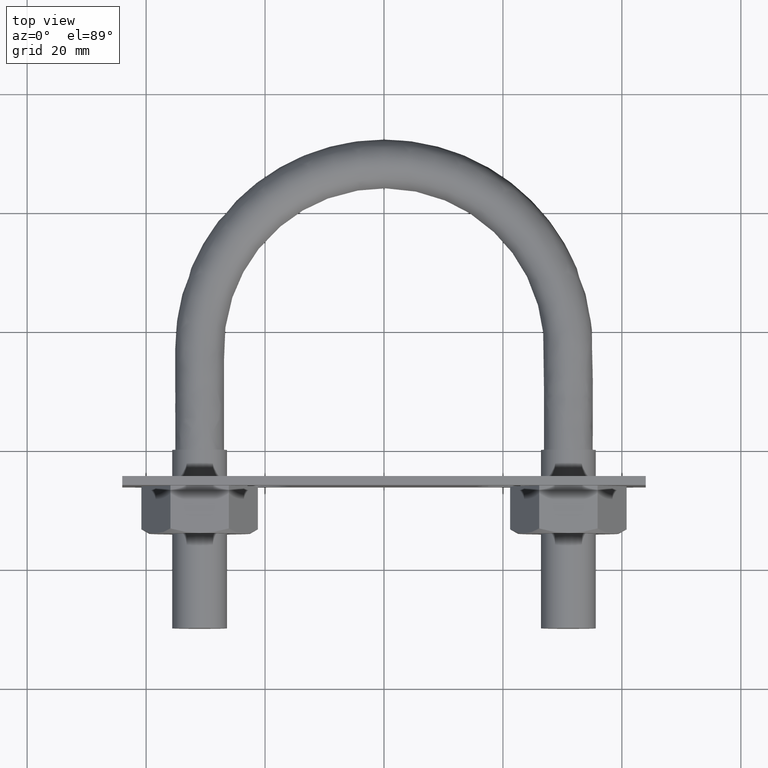
[diagram: clean part render]
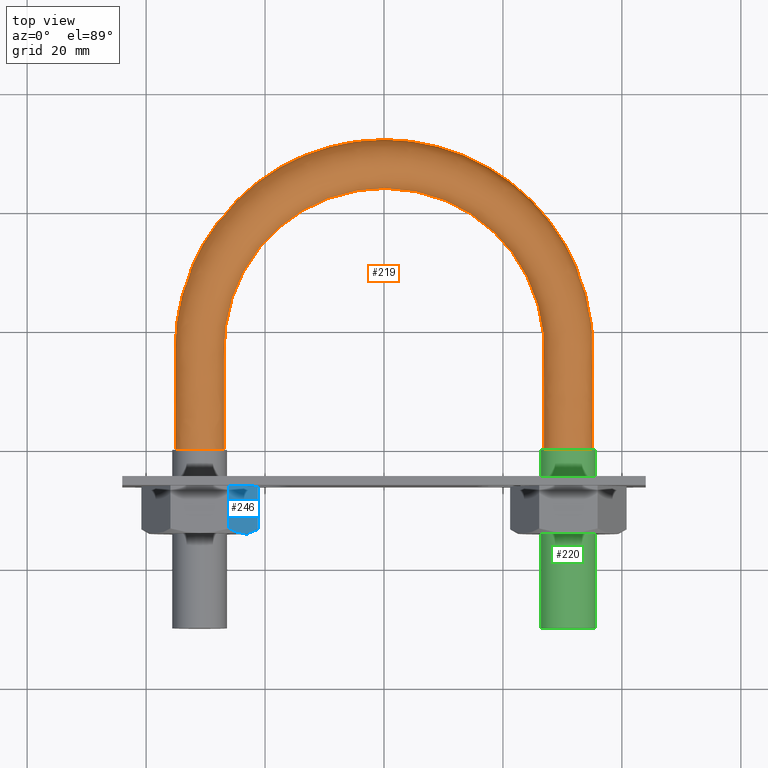
[diagram: same view with three faces highlighted in distinct colors, each labeled with its STEP entity id]
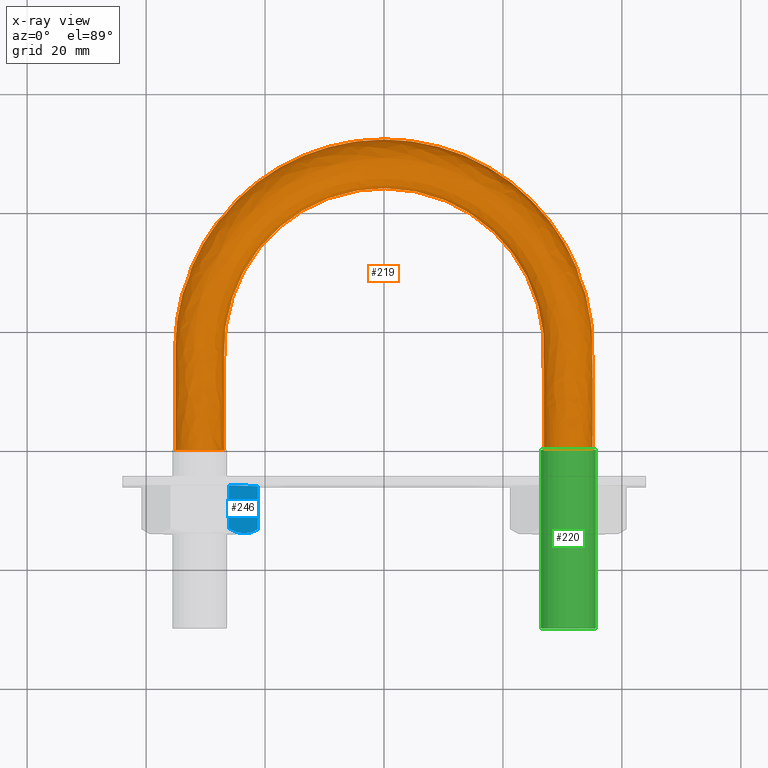
[diagram: x-ray of the same camera — body ghosted, the three highlighted faces saturated]
A machine part, top view with three faces highlighted in distinct colors.
The next image is the same camera in x-ray (body ghosted, the three faces saturated) — at least one of them is partly hidden behind the body in this view.
Their STEP definitions:

[orange] entity #219 — the highlighted face is a freeform B-spline surface patch.
#219 = ADVANCED_FACE( '', ( #291, #292 ), #293, .F. );
#291 = FACE_OUTER_BOUND( '', #452, .T. );
#292 = FACE_OUTER_BOUND( '', #453, .T. );
#293 = B_SPLINE_SURFACE_WITH_KNOTS( '', 3, 3, ( ( #454, #455, #456, #457, #458, #459, #460, #461, #462, #463, #464, #465, #466, #467, #468 ), ( #469, #470, #471, #472, #473, #474, #475, #476, #477, #478, #479, #480, #481, #482, #483 ), ( #484, #485, #486, #487, #488, #489, #490, #491, #492, #493, #494, #495, #496, #497, #498 ), ( #499, #500, #501, #502, #503, #504, #505, #506, #507, #508, #509, #510, #511, #512, #513 ), ( #514, #515, #516, #517, #518, #519, #520, #521, #522, #523, #524, #525, #526, #527, #528 ), ( #529, #530, #531, #532, #533, #534, #535, #536, #537, #538, #539, #540, #541, #542, #543 ), ( #544, #545, #546, #547, #548, #549, #550, #551, #552, #553, #554, #555, #556, #557, #558 ), ( #559, #560, #561, #562, #563, #564, #565, #566, #567, #568, #569, #570, #571, #572, #573 ), ( #574, #575, #576, #577, #578, #579, #580, #581, #582, #583, #584, #585, #586, #587, #588 ), ( #589, #590, #591, #592, #593, #594, #595, #596, #597, #598, #599, #600, #601, #602, #603 ) ), .UNSPECIFIED., .T., .F., .F., ( 2, 1, 1, 1, 1, 1, 1, 1, 1, 1, 1, 2 ), ( 4, 3, 1, 1, 1, 1, 1, 3, 4 ), ( -0.285714285714286, -0.142857142857143, 0.000000000000000, 0.142857142857143, 0.285714285714286, 0.428571428571429, 0.571428571428571, 0.714285714285714, 0.857142857142857, 1.00000000000000, 1.14285714285714, 1.28571428571429 ), ( 0.000000000000000, 1.00000000000000, 2.00000000000000, 3.00000000000000, 4.00000000000000, 5.00000000000000, 6.00000000000000, 7.00000000000000, 8.00000000000000 ), .UNSPECIFIED. );
#452 = EDGE_LOOP( '', ( #762 ) );
#453 = EDGE_LOOP( '', ( #763 ) );
#454 = CARTESIAN_POINT( '', ( -28.0768231851220, -2.24442655438486E-016, -3.66554778583225 ) );
#455 = CARTESIAN_POINT( '', ( -28.0768231851220, 5.70000000000000, -3.66554778583225 ) );
#456 = CARTESIAN_POINT( '', ( -28.0768231851220, 11.4000000000000, -3.66554778583225 ) );
#457 = CARTESIAN_POINT( '', ( -28.0768231851220, 17.1000000000000, -3.66554778583225 ) );
#458 = CARTESIAN_POINT( '', ( -28.0768231851220, 21.9860112912107, -3.66554778583225 ) );
#459 = CARTESIAN_POINT( '', ( -25.4518771226932, 31.8003436557627, -3.66554778583225 ) );
#460 = CARTESIAN_POINT( '', ( -14.6946481081682, 42.5502498233805, -3.66554778583225 ) );
#461 = CARTESIAN_POINT( '', ( -6.07153216591882E-015, 46.4901098659927, -3.66554778583225 ) );
#462 = CARTESIAN_POINT( '', ( 14.6946481081682, 42.5502498233805, -3.66554778583225 ) );
#463 = CARTESIAN_POINT( '', ( 25.4518771226932, 31.8003436557627, -3.66554778583225 ) );
#464 = CARTESIAN_POINT( '', ( 28.0768231851220, 21.9860112912107, -3.66554778583225 ) );
#465 = CARTESIAN_POINT( '', ( 28.0768231851220, 17.1000000000000, -3.66554778583225 ) );
#466 = CARTESIAN_POINT( '', ( 28.0768231851220, 11.4000000000000, -3.66554778583225 ) );
#467 = CARTESIAN_POINT( '', ( 28.0768231851220, 5.70000000000000, -3.66554778583225 ) );
#468 = CARTESIAN_POINT( '', ( 28.0768231851220, 2.24442655438486E-016, -3.66554778583225 ) );
#469 = CARTESIAN_POINT( '', ( -26.3115884074390, 0.000000000000000, 0.000000000000000 ) );
#470 = CARTESIAN_POINT( '', ( -26.3115884074390, 5.70000000000000, 0.000000000000000 ) );
#471 = CARTESIAN_POINT( '', ( -26.3115884074390, 11.4000000000000, 0.000000000000000 ) );
#472 = CARTESIAN_POINT( '', ( -26.3115884074390, 17.1000000000000, 0.000000000000000 ) );
#473 = CARTESIAN_POINT( '', ( -26.3115884074390, 21.6706824691230, 0.000000000000000 ) );
#474 = CARTESIAN_POINT( '', ( -23.8516769021034, 30.8799070291376, 0.000000000000000 ) );
#475 = CARTESIAN_POINT( '', ( -13.7707720800534, 40.9490669166508, 0.000000000000000 ) );
#476 = CARTESIAN_POINT( '', ( -6.07153216591882E-015, 44.6428491528331, 0.000000000000000 ) );
#477 = CARTESIAN_POINT( '', ( 13.7707720800534, 40.9490669166508, 0.000000000000000 ) );
#478 = CARTESIAN_POINT( '', ( 23.8516769021034, 30.8799070291376, 0.000000000000000 ) );
#479 = CARTESIAN_POINT( '', ( 26.3115884074390, 21.6706824691230, 0.000000000000000 ) );
#480 = CARTESIAN_POINT( '', ( 26.3115884074390, 17.1000000000000, 0.000000000000000 ) );
#481 = CARTESIAN_POINT( '', ( 26.3115884074390, 11.4000000000000, 0.000000000000000 ) );
#482 = CARTESIAN_POINT( '', ( 26.3115884074390, 5.70000000000000, 0.000000000000000 ) );
#483 = CARTESIAN_POINT( '', ( 26.3115884074390, 0.000000000000000, 0.000000000000000 ) );
#484 = CARTESIAN_POINT( '', ( -28.0768231851220, 2.24442655438486E-016, 3.66554778583225 ) );
#485 = CARTESIAN_POINT( '', ( -28.0768231851220, 5.70000000000000, 3.66554778583225 ) );
#486 = CARTESIAN_POINT( '', ( -28.0768231851220, 11.4000000000000, 3.66554778583225 ) );
#487 = CARTESIAN_POINT( '', ( -28.0768231851220, 17.1000000000000, 3.66554778583225 ) );
#488 = CARTESIAN_POINT( '', ( -28.0768231851220, 21.9860112912107, 3.66554778583225 ) );
#489 = CARTESIAN_POINT( '', ( -25.4518771226932, 31.8003436557627, 3.66554778583225 ) );
#490 = CARTESIAN_POINT( '', ( -14.6946481081682, 42.5502498233805, 3.66554778583225 ) );
#491 = CARTESIAN_POINT( '', ( -4.33680868994202E-015, 46.4901098659927, 3.66554778583225 ) );
#492 = CARTESIAN_POINT( '', ( 14.6946481081682, 42.5502498233804, 3.66554778583225 ) );
#493 = CARTESIAN_POINT( '', ( 25.4518771226932, 31.8003436557627, 3.66554778583225 ) );
#494 = CARTESIAN_POINT( '', ( 28.0768231851220, 21.9860112912107, 3.66554778583225 ) );
#495 = CARTESIAN_POINT( '', ( 28.0768231851220, 17.1000000000000, 3.66554778583225 ) );
#496 = CARTESIAN_POINT( '', ( 28.0768231851220, 11.4000000000000, 3.66554778583225 ) );
#497 = CARTESIAN_POINT( '', ( 28.0768231851220, 5.70000000000000, 3.66554778583225 ) );
#498 = CARTESIAN_POINT( '', ( 28.0768231851220, -2.24442655438486E-016, 3.66554778583225 ) );
#499 = CARTESIAN_POINT( '', ( -32.0432697263483, 2.79875413535979E-016, 4.57086332538454 ) );
#500 = CARTESIAN_POINT( '', ( -32.0432697263483, 5.70000000000000, 4.57086332538454 ) );
#501 = CARTESIAN_POINT( '', ( -32.0432697263483, 11.4000000000000, 4.57086332538454 ) );
#502 = CARTESIAN_POINT( '', ( -32.0432697263483, 17.1000000000000, 4.57086332538454 ) );
#503 = CARTESIAN_POINT( '', ( -32.0432697263483, 22.6945487229059, 4.57086332538454 ) );
#504 = CARTESIAN_POINT( '', ( -29.0474943802225, 33.8685459823037, 4.57086332538454 ) );
#505 = CARTESIAN_POINT( '', ( -16.7705786997056, 46.1480751566230, 4.57086332538454 ) );
#506 = CARTESIAN_POINT( '', ( -2.60208521396521E-015, 50.6408670112109, 4.57086332538454 ) );
#507 = CARTESIAN_POINT( '', ( 16.7705786997056, 46.1480751566230, 4.57086332538454 ) );
#508 = CARTESIAN_POINT( '', ( 29.0474943802225, 33.8685459823037, 4.57086332538454 ) );
#509 = CARTESIAN_POINT( '', ( 32.0432697263483, 22.6945487229059, 4.57086332538454 ) );
#510 = CARTESIAN_POINT( '', ( 32.0432697263483, 17.1000000000000, 4.57086332538454 ) );
#511 = CARTESIAN_POINT( '', ( 32.0432697263483, 11.4000000000000, 4.57086332538454 ) );
#512 = CARTESIAN_POINT( '', ( 32.0432697263483, 5.70000000000000, 4.57086332538454 ) );
#513 = CARTESIAN_POINT( '', ( 32.0432697263483, -2.79875413535979E-016, 4.57086332538454 ) );
#514 = CARTESIAN_POINT( '', ( -35.2241128848102, 1.24556276822872E-016, 2.03422555230246 ) );
#515 = CARTESIAN_POINT( '', ( -35.2241128848102, 5.70000000000000, 2.03422555230246 ) );
#516 = CARTESIAN_POINT( '', ( -35.2241128848102, 11.4000000000000, 2.03422555230246 ) );
#517 = CARTESIAN_POINT( '', ( -35.2241128848102, 17.1000000000000, 2.03422555230246 ) );
#518 = CARTESIAN_POINT( '', ( -35.2241128848102, 23.2627516266125, 2.03422555230246 ) );
#519 = CARTESIAN_POINT( '', ( -31.9309555425463, 35.5271154732364, 2.03422555230246 ) );
#520 = CARTESIAN_POINT( '', ( -18.4353457779711, 49.0333070581848, 2.03422555230246 ) );
#521 = CARTESIAN_POINT( '', ( -1.73472347597681E-015, 53.9695157981229, 2.03422555230246 ) );
#522 = CARTESIAN_POINT( '', ( 18.4353457779711, 49.0333070581849, 2.03422555230246 ) );
#523 = CARTESIAN_POINT( '', ( 31.9309555425463, 35.5271154732363, 2.03422555230247 ) );
#524 = CARTESIAN_POINT( '', ( 35.2241128848102, 23.2627516266125, 2.03422555230246 ) );
#525 = CARTESIAN_POINT( '', ( 35.2241128848102, 17.1000000000000, 2.03422555230246 ) );
#526 = CARTESIAN_POINT( '', ( 35.2241128848102, 11.4000000000000, 2.03422555230246 ) );
#527 = CARTESIAN_POINT( '', ( 35.2241128848102, 5.70000000000000, 2.03422555230246 ) );
#528 = CARTESIAN_POINT( '', ( 35.2241128848102, -1.24556276822872E-016, 2.03422555230246 ) );
#529 = CARTESIAN_POINT( '', ( -35.2241128848102, -1.24556276822872E-016, -2.03422555230246 ) );
#530 = CARTESIAN_POINT( '', ( -35.2241128848102, 5.70000000000000, -2.03422555230246 ) );
#531 = CARTESIAN_POINT( '', ( -35.2241128848102, 11.4000000000000, -2.03422555230246 ) );
#532 = CARTESIAN_POINT( '', ( -35.2241128848102, 17.1000000000000, -2.03422555230246 ) );
#533 = CARTESIAN_POINT( '', ( -35.2241128848102, 23.2627516266125, -2.03422555230246 ) );
#534 = CARTESIAN_POINT( '', ( -31.9309555425463, 35.5271154732364, -2.03422555230246 ) );
#535 = CARTESIAN_POINT( '', ( -18.4353457779711, 49.0333070581848, -2.03422555230246 ) );
#536 = CARTESIAN_POINT( '', ( -1.73472347597681E-015, 53.9695157981229, -2.03422555230246 ) );
#537 = CARTESIAN_POINT( '', ( 18.4353457779711, 49.0333070581849, -2.03422555230246 ) );
#538 = CARTESIAN_POINT( '', ( 31.9309555425463, 35.5271154732363, -2.03422555230246 ) );
#539 = CARTESIAN_POINT( '', ( 35.2241128848102, 23.2627516266125, -2.03422555230246 ) );
#540 = CARTESIAN_POINT( '', ( 35.2241128848102, 17.1000000000000, -2.03422555230246 ) );
#541 = CARTESIAN_POINT( '', ( 35.2241128848102, 11.4000000000000, -2.03422555230246 ) );
#542 = CARTESIAN_POINT( '', ( 35.2241128848102, 5.70000000000000, -2.03422555230246 ) );
#543 = CARTESIAN_POINT( '', ( 35.2241128848102, 1.24556276822872E-016, -2.03422555230246 ) );
#544 = CARTESIAN_POINT( '', ( -32.0432697263483, -2.79875413535979E-016, -4.57086332538454 ) );
#545 = CARTESIAN_POINT( '', ( -32.0432697263483, 5.70000000000000, -4.57086332538454 ) );
#546 = CARTESIAN_POINT( '', ( -32.0432697263483, 11.4000000000000, -4.57086332538454 ) );
#547 = CARTESIAN_POINT( '', ( -32.0432697263483, 17.1000000000000, -4.57086332538454 ) );
#548 = CARTESIAN_POINT( '', ( -32.0432697263483, 22.6945487229059, -4.57086332538454 ) );
#549 = CARTESIAN_POINT( '', ( -29.0474943802225, 33.8685459823037, -4.57086332538454 ) );
#550 = CARTESIAN_POINT( '', ( -16.7705786997056, 46.1480751566230, -4.57086332538454 ) );
#551 = CARTESIAN_POINT( '', ( -5.20417042793042E-015, 50.6408670112109, -4.57086332538454 ) );
#552 = CARTESIAN_POINT( '', ( 16.7705786997056, 46.1480751566230, -4.57086332538454 ) );
#553 = CARTESIAN_POINT( '', ( 29.0474943802225, 33.8685459823037, -4.57086332538454 ) );
#554 = CARTESIAN_POINT( '', ( 32.0432697263483, 22.6945487229059, -4.57086332538454 ) );
#555 = CARTESIAN_POINT( '', ( 32.0432697263483, 17.1000000000000, -4.57086332538454 ) );
#556 = CARTESIAN_POINT( '', ( 32.0432697263483, 11.4000000000000, -4.57086332538454 ) );
#557 = CARTESIAN_POINT( '', ( 32.0432697263483, 5.70000000000000, -4.57086332538454 ) );
#558 = CARTESIAN_POINT( '', ( 32.0432697263483, 2.79875413535979E-016, -4.57086332538454 ) );
#559 = CARTESIAN_POINT( '', ( -28.0768231851220, -2.24442655438486E-016, -3.66554778583225 ) );
#560 = CARTESIAN_POINT( '', ( -28.0768231851220, 5.70000000000000, -3.66554778583225 ) );
#561 = CARTESIAN_POINT( '', ( -28.0768231851220, 11.4000000000000, -3.66554778583225 ) );
#562 = CARTESIAN_POINT( '', ( -28.0768231851220, 17.1000000000000, -3.66554778583225 ) );
#563 = CARTESIAN_POINT( '', ( -28.0768231851220, 21.9860112912107, -3.66554778583225 ) );
#564 = CARTESIAN_POINT( '', ( -25.4518771226932, 31.8003436557627, -3.66554778583225 ) );
#565 = CARTESIAN_POINT( '', ( -14.6946481081682, 42.5502498233805, -3.66554778583225 ) );
#566 = CARTESIAN_POINT( '', ( -6.07153216591882E-015, 46.4901098659927, -3.66554778583225 ) );
#567 = CARTESIAN_POINT( '', ( 14.6946481081682, 42.5502498233805, -3.66554778583225 ) );
#568 = CARTESIAN_POINT( '', ( 25.4518771226932, 31.8003436557627, -3.66554778583225 ) );
#569 = CARTESIAN_POINT( '', ( 28.0768231851220, 21.9860112912107, -3.66554778583225 ) );
#570 = CARTESIAN_POINT( '', ( 28.0768231851220, 17.1000000000000, -3.66554778583225 ) );
#571 = CARTESIAN_POINT( '', ( 28.0768231851220, 11.4000000000000, -3.66554778583225 ) );
#572 = CARTESIAN_POINT( '', ( 28.0768231851220, 5.70000000000000, -3.66554778583225 ) );
#573 = CARTESIAN_POINT( '', ( 28.0768231851220, 2.24442655438486E-016, -3.66554778583225 ) );
#574 = CARTESIAN_POINT( '', ( -26.3115884074390, 0.000000000000000, 0.000000000000000 ) );
#575 = CARTESIAN_POINT( '', ( -26.3115884074390, 5.70000000000000, 0.000000000000000 ) );
#576 = CARTESIAN_POINT( '', ( -26.3115884074390, 11.4000000000000, 0.000000000000000 ) );
#577 = CARTESIAN_POINT( '', ( -26.3115884074390, 17.1000000000000, 0.000000000000000 ) );
#578 = CARTESIAN_POINT( '', ( -26.3115884074390, 21.6706824691230, 0.000000000000000 ) );
#579 = CARTESIAN_POINT( '', ( -23.8516769021034, 30.8799070291376, 0.000000000000000 ) );
#580 = CARTESIAN_POINT( '', ( -13.7707720800534, 40.9490669166508, 0.000000000000000 ) );
#581 = CARTESIAN_POINT( '', ( -6.07153216591882E-015, 44.6428491528331, 0.000000000000000 ) );
#582 = CARTESIAN_POINT( '', ( 13.7707720800534, 40.9490669166508, 0.000000000000000 ) );
#583 = CARTESIAN_POINT( '', ( 23.8516769021034, 30.8799070291376, 0.000000000000000 ) );
#584 = CARTESIAN_POINT( '', ( 26.3115884074390, 21.6706824691230, 0.000000000000000 ) );
#585 = CARTESIAN_POINT( '', ( 26.3115884074390, 17.1000000000000, 0.000000000000000 ) );
#586 = CARTESIAN_POINT( '', ( 26.3115884074390, 11.4000000000000, 0.000000000000000 ) );
#587 = CARTESIAN_POINT( '', ( 26.3115884074390, 5.70000000000000, 0.000000000000000 ) );
#588 = CARTESIAN_POINT( '', ( 26.3115884074390, 0.000000000000000, 0.000000000000000 ) );
#589 = CARTESIAN_POINT( '', ( -28.0768231851220, 2.24442655438486E-016, 3.66554778583225 ) );
#590 = CARTESIAN_POINT( '', ( -28.0768231851220, 5.70000000000000, 3.66554778583225 ) );
#591 = CARTESIAN_POINT( '', ( -28.0768231851220, 11.4000000000000, 3.66554778583225 ) );
#592 = CARTESIAN_POINT( '', ( -28.0768231851220, 17.1000000000000, 3.66554778583225 ) );
#593 = CARTESIAN_POINT( '', ( -28.0768231851220, 21.9860112912107, 3.66554778583225 ) );
#594 = CARTESIAN_POINT( '', ( -25.4518771226932, 31.8003436557627, 3.66554778583225 ) );
#595 = CARTESIAN_POINT( '', ( -14.6946481081682, 42.5502498233805, 3.66554778583225 ) );
#596 = CARTESIAN_POINT( '', ( -4.33680868994202E-015, 46.4901098659927, 3.66554778583225 ) );
#597 = CARTESIAN_POINT( '', ( 14.6946481081682, 42.5502498233804, 3.66554778583225 ) );
#598 = CARTESIAN_POINT( '', ( 25.4518771226932, 31.8003436557627, 3.66554778583225 ) );
#599 = CARTESIAN_POINT( '', ( 28.0768231851220, 21.9860112912107, 3.66554778583225 ) );
#600 = CARTESIAN_POINT( '', ( 28.0768231851220, 17.1000000000000, 3.66554778583225 ) );
#601 = CARTESIAN_POINT( '', ( 28.0768231851220, 11.4000000000000, 3.66554778583225 ) );
#602 = CARTESIAN_POINT( '', ( 28.0768231851220, 5.70000000000000, 3.66554778583225 ) );
#603 = CARTESIAN_POINT( '', ( 28.0768231851220, -2.24442655438486E-016, 3.66554778583225 ) );
#762 = ORIENTED_EDGE( '', *, *, #1288, .T. );
#763 = ORIENTED_EDGE( '', *, *, #1289, .T. );
#1288 = EDGE_CURVE( '', #1446, #1446, #1447, .F. );
#1289 = EDGE_CURVE( '', #1448, #1448, #1449, .T. );
#1446 = VERTEX_POINT( '', #1710 );
#1447 = B_SPLINE_CURVE_WITH_KNOTS( '', 3, ( #1711, #1712, #1713, #1714, #1715, #1716, #1717, #1718, #1719, #1720 ), .UNSPECIFIED., .T., .F., ( 4, 1, 1, 1, 1, 1, 1, 4 ), ( 0.000000000000000, 0.142857142857143, 0.285714285714286, 0.428571428571429, 0.571428571428571, 0.714285714285714, 0.857142857142857, 1.00000000000000 ), .UNSPECIFIED. );
#1448 = VERTEX_POINT( '', #1721 );
#1449 = B_SPLINE_CURVE_WITH_KNOTS( '', 3, ( #1722, #1723, #1724, #1725, #1726, #1727, #1728, #1729, #1730, #1731 ), .UNSPECIFIED., .T., .F., ( 4, 1, 1, 1, 1, 1, 1, 4 ), ( 0.000000000000000, 0.142857142857143, 0.285714285714286, 0.428571428571429, 0.571428571428571, 0.714285714285714, 0.857142857142857, 1.00000000000000 ), .UNSPECIFIED. );
#1710 = CARTESIAN_POINT( '', ( -26.9000000000000, 6.62038418383112E-032, 1.19262238973405E-015 ) );
#1711 = CARTESIAN_POINT( '', ( -26.9000000000000, 2.40741243048404E-032, 4.33680868994202E-016 ) );
#1712 = CARTESIAN_POINT( '', ( -26.9000000000000, 7.48142184794953E-017, 1.22184926194408 ) );
#1713 = CARTESIAN_POINT( '', ( -28.0768231851220, 2.24442655438486E-016, 3.66554778583225 ) );
#1714 = CARTESIAN_POINT( '', ( -32.0432697263483, 2.79875413535979E-016, 4.57086332538454 ) );
#1715 = CARTESIAN_POINT( '', ( -35.2241128848102, 1.24556276822872E-016, 2.03422555230246 ) );
#1716 = CARTESIAN_POINT( '', ( -35.2241128848102, -1.24556276822872E-016, -2.03422555230246 ) );
#1717 = CARTESIAN_POINT( '', ( -32.0432697263483, -2.79875413535979E-016, -4.57086332538454 ) );
#1718 = CARTESIAN_POINT( '', ( -28.0768231851220, -2.24442655438486E-016, -3.66554778583225 ) );
#1719 = CARTESIAN_POINT( '', ( -26.9000000000000, -7.48142184794953E-017, -1.22184926194408 ) );
#1720 = CARTESIAN_POINT( '', ( -26.9000000000000, 2.40741243048404E-032, 4.33680868994202E-016 ) );
#1721 = CARTESIAN_POINT( '', ( 26.9000000000000, -2.40741243048404E-032, 4.33680868994202E-016 ) );
#1722 = CARTESIAN_POINT( '', ( 26.9000000000000, -2.40741243048404E-032, 4.33680868994202E-016 ) );
#1723 = CARTESIAN_POINT( '', ( 26.9000000000000, -7.48142184794953E-017, 1.22184926194408 ) );
#1724 = CARTESIAN_POINT( '', ( 28.0768231851220, -2.24442655438486E-016, 3.66554778583225 ) );
#1725 = CARTESIAN_POINT( '', ( 32.0432697263483, -2.79875413535979E-016, 4.57086332538454 ) );
#1726 = CARTESIAN_POINT( '', ( 35.2241128848102, -1.24556276822872E-016, 2.03422555230246 ) );
#1727 = CARTESIAN_POINT( '', ( 35.2241128848102, 1.24556276822872E-016, -2.03422555230246 ) );
#1728 = CARTESIAN_POINT( '', ( 32.0432697263483, 2.79875413535979E-016, -4.57086332538454 ) );
#1729 = CARTESIAN_POINT( '', ( 28.0768231851220, 2.24442655438486E-016, -3.66554778583225 ) );
#1730 = CARTESIAN_POINT( '', ( 26.9000000000000, 7.48142184794953E-017, -1.22184926194408 ) );
#1731 = CARTESIAN_POINT( '', ( 26.9000000000000, -2.40741243048404E-032, 4.33680868994202E-016 ) );

[blue] entity #246 — the highlighted planar face has unit normal (-0.866, 0, -0.5).
#246 = ADVANCED_FACE( '', ( #355 ), #356, .F. );
#355 = FACE_OUTER_BOUND( '', #665, .T. );
#356 = PLANE( '', #666 );
#665 = EDGE_LOOP( '', ( #959, #960, #961, #962, #963 ) );
#666 = AXIS2_PLACEMENT_3D( '', #964, #965, #966 );
#959 = ORIENTED_EDGE( '', *, *, #1345, .F. );
#960 = ORIENTED_EDGE( '', *, *, #1352, .F. );
#961 = ORIENTED_EDGE( '', *, *, #1353, .F. );
#962 = ORIENTED_EDGE( '', *, *, #1354, .F. );
#963 = ORIENTED_EDGE( '', *, *, #1355, .F. );
#964 = CARTESIAN_POINT( '', ( -26.0925227118882, -6.09999999999999, 8.50000000000000 ) );
#965 = DIRECTION( '', ( -0.866025403784439, 5.30270106023007E-017, -0.500000000000000 ) );
#966 = DIRECTION( '', ( -0.500000000000000, 3.06151588455594E-017, 0.866025403784439 ) );
#1345 = EDGE_CURVE( '', #1543, #1539, #1545, .T. );
#1352 = EDGE_CURVE( '', #1557, #1543, #1558, .T. );
#1353 = EDGE_CURVE( '', #1559, #1557, #1560, .F. );
#1354 = EDGE_CURVE( '', #1561, #1559, #1562, .T. );
#1355 = EDGE_CURVE( '', #1539, #1561, #1563, .T. );
#1539 = VERTEX_POINT( '', #1853 );
#1543 = VERTEX_POINT( '', #1862 );
#1545 = B_SPLINE_CURVE_WITH_KNOTS( '', 3, ( #1864, #1865, #1866, #1867, #1868, #1869, #1870, #1871 ), .UNSPECIFIED., .F., .F., ( 4, 2, 2, 4 ), ( 0.00493506423428099, 0.00616384870526321, 0.00739263317624543, 0.00985020211820987 ), .UNSPECIFIED. );
#1557 = VERTEX_POINT( '', #1883 );
#1558 = B_SPLINE_CURVE_WITH_KNOTS( '', 3, ( #1884, #1885, #1886, #1887, #1888, #1889 ), .UNSPECIFIED., .F., .F., ( 4, 2, 4 ), ( 4.83064900407440E-007, 0.00246777364959070, 0.00493506423428099 ), .UNSPECIFIED. );
#1559 = VERTEX_POINT( '', #1890 );
#1560 = LINE( '', #1891, #1892 );
#1561 = VERTEX_POINT( '', #1893 );
#1562 = LINE( '', #1894, #1895 );
#1563 = LINE( '', #1896, #1897 );
#1853 = CARTESIAN_POINT( '', ( -26.0775337474837, -13.3494446500535, 8.47403835209862 ) );
#1862 = CARTESIAN_POINT( '', ( -23.6387840678323, -14.1000000000000, 4.25000000000000 ) );
#1864 = CARTESIAN_POINT( '', ( -23.6387840678323, -14.1000000000000, 4.25000000000000 ) );
#1865 = CARTESIAN_POINT( '', ( -23.8456385394389, -14.1000000000000, 4.60828245459559 ) );
#1866 = CARTESIAN_POINT( '', ( -24.0535275305460, -14.0822887918237, 4.96835674952724 ) );
#1867 = CARTESIAN_POINT( '', ( -24.4647840563434, -14.0136978063788, 5.68067394715264 ) );
#1868 = CARTESIAN_POINT( '', ( -24.6690452347238, -13.9628883495806, 6.03446468612131 ) );
#1869 = CARTESIAN_POINT( '', ( -25.2782186306658, -13.7668505986087, 7.08958395851212 ) );
#1870 = CARTESIAN_POINT( '', ( -25.6795341003769, -13.5781746872645, 7.78468274191512 ) );
#1871 = CARTESIAN_POINT( '', ( -26.0775337474837, -13.3494446500535, 8.47403835209862 ) );
#1883 = CARTESIAN_POINT( '', ( -21.2000343881808, -13.3494446500535, 0.0259616479013807 ) );
#1884 = CARTESIAN_POINT( '', ( -21.2000343881808, -13.3494446500535, 0.0259616479013786 ) );
#1885 = CARTESIAN_POINT( '', ( -21.5990867524617, -13.5787796828723, 0.717140617716312 ) );
#1886 = CARTESIAN_POINT( '', ( -22.0010212207036, -13.7675474634560, 1.41331153802454 ) );
#1887 = CARTESIAN_POINT( '', ( -22.8131667591043, -14.0285851459414, 2.81998887367487 ) );
#1888 = CARTESIAN_POINT( '', ( -23.2234385762114, -14.1000000000000, 3.53060050581790 ) );
#1889 = CARTESIAN_POINT( '', ( -23.6387840678323, -14.1000000000000, 4.25000000000000 ) );
#1890 = CARTESIAN_POINT( '', ( -21.2000343881808, -6.10000000000000, 0.0259616479013815 ) );
#1891 = CARTESIAN_POINT( '', ( -21.2000343881808, -6.10000000000000, 0.0259616479013807 ) );
#1892 = VECTOR( '', #2312, 1000.00000000000 );
#1893 = CARTESIAN_POINT( '', ( -26.0775337474837, -6.09999999999999, 8.47403835209862 ) );
#1894 = CARTESIAN_POINT( '', ( -26.0887840678323, -6.09999999999999, 8.49352447854375 ) );
#1895 = VECTOR( '', #2313, 1000.00000000000 );
#1896 = CARTESIAN_POINT( '', ( -26.0775337474837, -6.09999999999999, 8.47403835209862 ) );
#1897 = VECTOR( '', #2314, 1000.00000000000 );
#2312 = DIRECTION( '', ( 6.12303176911189E-017, 1.00000000000000, -4.95179021115217E-066 ) );
#2313 = DIRECTION( '', ( 0.500000000000000, -3.06151588455594E-017, -0.866025403784439 ) );
#2314 = DIRECTION( '', ( 6.12303176911189E-017, 1.00000000000000, -4.95179021115217E-066 ) );

[green] entity #220 — the highlighted cylindrical surface (bore or boss wall) has radius 4.6 mm, axis along (0, 1, 0).
#220 = ADVANCED_FACE( '', ( #294, #295 ), #296, .T. );
#294 = FACE_OUTER_BOUND( '', #604, .T. );
#295 = FACE_OUTER_BOUND( '', #605, .T. );
#296 = CYLINDRICAL_SURFACE( '', #606, 4.59999999999999 );
#604 = EDGE_LOOP( '', ( #764 ) );
#605 = EDGE_LOOP( '', ( #765 ) );
#606 = AXIS2_PLACEMENT_3D( '', #766, #767, #768 );
#764 = ORIENTED_EDGE( '', *, *, #1290, .T. );
#765 = ORIENTED_EDGE( '', *, *, #1291, .F. );
#766 = CARTESIAN_POINT( '', ( 31.0000000000000, -100.076000000000, 0.000000000000000 ) );
#767 = DIRECTION( '', ( 6.12303176911189E-017, 1.00000000000000, 0.000000000000000 ) );
#768 = DIRECTION( '', ( 1.00000000000000, -6.12303176911189E-017, 0.000000000000000 ) );
#1290 = EDGE_CURVE( '', #1450, #1450, #1451, .T. );
#1291 = EDGE_CURVE( '', #1452, #1452, #1453, .T. );
#1450 = VERTEX_POINT( '', #1732 );
#1451 = CIRCLE( '', #1733, 4.59999999999999 );
#1452 = VERTEX_POINT( '', #1734 );
#1453 = CIRCLE( '', #1735, 4.60000000000000 );
#1732 = CARTESIAN_POINT( '', ( 35.6000000000000, -2.81659461379146E-016, 0.000000000000000 ) );
#1733 = AXIS2_PLACEMENT_3D( '', #2196, #2197, #2198 );
#1734 = CARTESIAN_POINT( '', ( 35.6000000000000, -30.0000000000000, 0.000000000000000 ) );
#1735 = AXIS2_PLACEMENT_3D( '', #2199, #2200, #2201 );
#2196 = CARTESIAN_POINT( '', ( 31.0000000000000, 0.000000000000000, 0.000000000000000 ) );
#2197 = DIRECTION( '', ( -6.12303176911189E-017, -1.00000000000000, 0.000000000000000 ) );
#2198 = DIRECTION( '', ( 1.00000000000000, -6.12303176911189E-017, 0.000000000000000 ) );
#2199 = CARTESIAN_POINT( '', ( 31.0000000000000, -30.0000000000000, 0.000000000000000 ) );
#2200 = DIRECTION( '', ( -6.12303176911189E-017, -1.00000000000000, 0.000000000000000 ) );
#2201 = DIRECTION( '', ( 1.00000000000000, -6.12303176911189E-017, 0.000000000000000 ) );